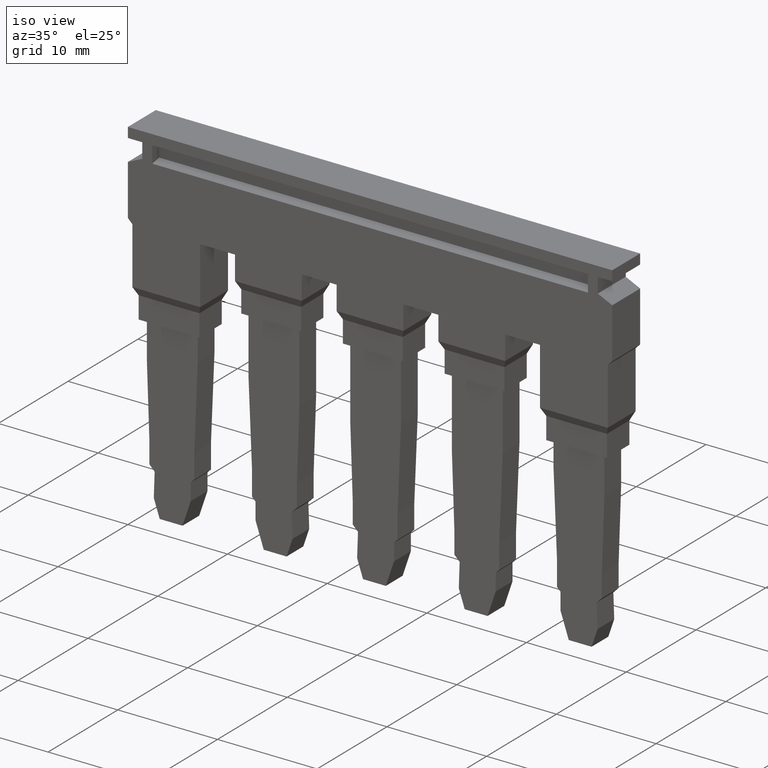
[diagram: clean part render]
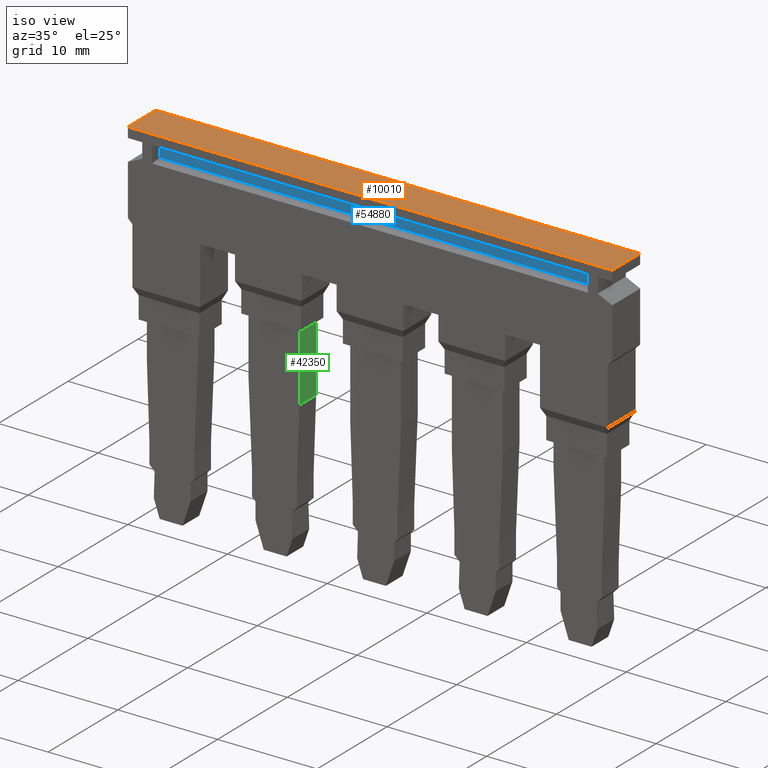
[diagram: same view with three faces highlighted in distinct colors, each labeled with its STEP entity id]
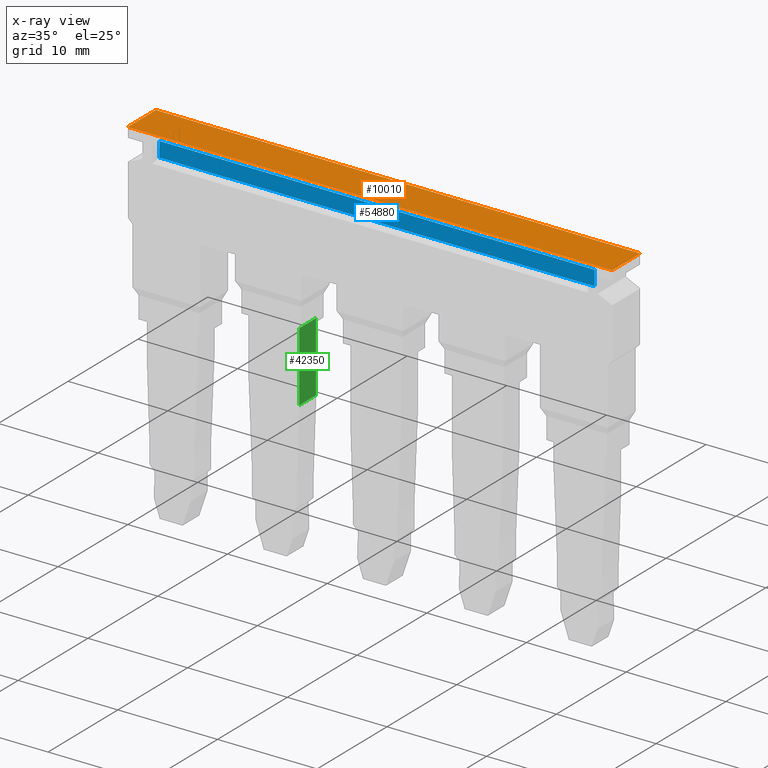
[diagram: x-ray of the same camera — body ghosted, the three highlighted faces saturated]
A machine part, iso view with three faces highlighted in distinct colors.
The next image is the same camera in x-ray (body ghosted, the three faces saturated) — at least one of them is partly hidden behind the body in this view.
Their STEP definitions:

[orange] entity #10010 — the highlighted planar face has unit normal (-0, 0, -1).
#100=CARTESIAN_POINT('',(-2.40000000012796,39.9999997693944,-39.525));
#110=VERTEX_POINT('',#100);
#2400=CARTESIAN_POINT('',(-2.40000000012796,39.9999997693944,9.075));
#2410=VERTEX_POINT('',#2400);
#2440=CARTESIAN_POINT('',(-2.40000000012796,39.9999997693944,
4.40737639386843));
#2450=DIRECTION('',(0.,-6.12323399583388E-17,1.));
#2460=VECTOR('',#2450,1.);
#2470=LINE('',#2440,#2460);
#2480=EDGE_CURVE('',#110,#2410,#2470,.T.);
#3050=CARTESIAN_POINT('',(-6.40000000004967,39.9999997693944,9.075));
#3060=VERTEX_POINT('',#3050);
#5330=CARTESIAN_POINT('',(-6.40000000004966,39.9999997693944,-39.525));
#5340=VERTEX_POINT('',#5330);
#5370=CARTESIAN_POINT('',(-6.40000000004967,39.9999997693944,-15.225));
#5380=DIRECTION('',(-1.11022302461495E-16,-6.12323399583388E-17,1.));
#5390=VECTOR('',#5380,1.);
#5400=LINE('',#5370,#5390);
#5410=EDGE_CURVE('',#5340,#3060,#5400,.T.);
#6000=CARTESIAN_POINT('',(-2.40000000012796,39.9999997693944,9.075));
#6010=DIRECTION('',(1.,0.,0.));
#6020=VECTOR('',#6010,1.);
#6030=LINE('',#6000,#6020);
#6040=EDGE_CURVE('',#3060,#2410,#6030,.T.);
#9850=CARTESIAN_POINT('',(-2.40000000012796,39.9999997693944,-38.425));
#9860=DIRECTION('',(-0.,-1.,-6.12323399583388E-17));
#9870=DIRECTION('',(0.,-6.12323399583388E-17,1.));
#9880=AXIS2_PLACEMENT_3D('',#9850,#9860,#9870);
#9890=PLANE('',#9880);
#9900=ORIENTED_EDGE('',*,*,#2480,.F.);
#9910=ORIENTED_EDGE('',*,*,#6040,.T.);
#9920=ORIENTED_EDGE('',*,*,#5410,.T.);
#9930=CARTESIAN_POINT('',(-2.40000000012796,39.9999997693944,-39.525));
#9940=DIRECTION('',(1.,0.,0.));
#9950=VECTOR('',#9940,1.);
#9960=LINE('',#9930,#9950);
#9970=EDGE_CURVE('',#5340,#110,#9960,.T.);
#9980=ORIENTED_EDGE('',*,*,#9970,.F.);
#9990=EDGE_LOOP('',(#9980,#9920,#9910,#9900));
#10000=FACE_OUTER_BOUND('',#9990,.T.);
#10010=ADVANCED_FACE('',(#10000),#9890,.F.);

[blue] entity #54880 — the highlighted planar face has unit normal (0, 1, 0).
#54050=CARTESIAN_POINT('',(-5.39999999998135,38.9999997703967,
-37.0750000000175));
#54060=VERTEX_POINT('',#54050);
#54090=CARTESIAN_POINT('',(-5.40000000023386,24.5659443935962,
-37.0750000000175));
#54100=DIRECTION('',(1.74939901767895E-11,1.,2.251741776584E-18));
#54110=VECTOR('',#54100,1.);
#54120=LINE('',#54090,#54110);
#54130=CARTESIAN_POINT('',(-5.40000000000759,37.4999997703967,
-37.0750000000175));
#54140=VERTEX_POINT('',#54130);
#54150=EDGE_CURVE('',#54140,#54060,#54120,.T.);
#54400=CARTESIAN_POINT('',(-5.39999999989475,37.4999997703967,
-30.6250000000175));
#54410=DIRECTION('',(1.74939381350852E-11,-2.2520478153659E-18,1.));
#54420=VECTOR('',#54410,1.);
#54430=LINE('',#54400,#54420);
#54440=CARTESIAN_POINT('',(-5.3999999992431,37.4999997703967,
6.62499999998251));
#54450=VERTEX_POINT('',#54440);
#54460=EDGE_CURVE('',#54140,#54450,#54430,.T.);
#54650=CARTESIAN_POINT('',(-5.39999999998135,38.9999997703967,
-37.0750000000175));
#54660=DIRECTION('',(1.,-1.74939901767895E-11,-1.74939381350852E-11));
#54670=DIRECTION('',(-1.74939901767895E-11,-1.,-2.251741776584E-18));
#54680=AXIS2_PLACEMENT_3D('',#54650,#54660,#54670);
#54690=PLANE('',#54680);
#54700=ORIENTED_EDGE('',*,*,#54150,.F.);
#54710=CARTESIAN_POINT('',(-5.39999999986851,38.9999997703967,
-30.6250000000175));
#54720=DIRECTION('',(1.74939381350852E-11,-2.25204781536588E-18,1.));
#54730=VECTOR('',#54720,1.);
#54740=LINE('',#54710,#54730);
#54750=CARTESIAN_POINT('',(-5.39999999921686,38.9999997703967,
6.62499999998251));
#54760=VERTEX_POINT('',#54750);
#54770=EDGE_CURVE('',#54060,#54760,#54740,.T.);
#54780=ORIENTED_EDGE('',*,*,#54770,.F.);
#54790=CARTESIAN_POINT('',(-5.4000000000968,-11.2994742296033,
6.62499999998252));
#54800=DIRECTION('',(1.74939901767895E-11,1.,-2.42677618055314E-16));
#54810=VECTOR('',#54800,1.);
#54820=LINE('',#54790,#54810);
#54830=EDGE_CURVE('',#54450,#54760,#54820,.T.);
#54840=ORIENTED_EDGE('',*,*,#54830,.T.);
#54850=ORIENTED_EDGE('',*,*,#54460,.T.);
#54860=EDGE_LOOP('',(#54850,#54840,#54780,#54700));
#54870=FACE_OUTER_BOUND('',#54860,.T.);
#54880=ADVANCED_FACE('',(#54870),#54690,.F.);

[green] entity #42350 — the highlighted planar face has unit normal (-1, 0, -0).
#8900=CARTESIAN_POINT('',(-3.20000000012802,25.8999997693718,
-22.8750000016327));
#8910=VERTEX_POINT('',#8900);
#8940=CARTESIAN_POINT('',(-2.40000000012796,25.8999997693718,
-22.8750000016326));
#8950=DIRECTION('',(-1.,-3.69778549322349E-32,1.77975831143421E-16));
#8960=VECTOR('',#8950,1.);
#8970=LINE('',#8940,#8960);
#8980=CARTESIAN_POINT('',(-5.60000000012802,25.8999997693718,
-22.8750000016327));
#8990=VERTEX_POINT('',#8980);
#9000=EDGE_CURVE('',#8910,#8990,#8970,.T.);
#38640=CARTESIAN_POINT('',(-3.20000000009745,18.9090873678956,
-22.8750000016327));
#38650=VERTEX_POINT('',#38640);
#38680=CARTESIAN_POINT('',(-3.20000000012218,24.5659443926042,
-22.8750000016327));
#38690=DIRECTION('',(4.37230317964272E-12,-1.,4.55531587300953E-16));
#38700=VECTOR('',#38690,1.);
#38710=LINE('',#38680,#38700);
#38720=EDGE_CURVE('',#8910,#38650,#38710,.T.);
#39590=CARTESIAN_POINT('',(-5.60000000012218,24.5659443925937,
-22.8750000016327));
#39600=DIRECTION('',(4.37230317964272E-12,-1.,4.55531587300953E-16));
#39610=VECTOR('',#39600,1.);
#39620=LINE('',#39590,#39610);
#39630=CARTESIAN_POINT('',(-5.60000000009745,18.9090873678851,
-22.8750000016327));
#39640=VERTEX_POINT('',#39630);
#39650=EDGE_CURVE('',#8990,#39640,#39620,.T.);
#42190=CARTESIAN_POINT('',(-5.60000000013115,26.6155919999755,
-22.8750000016326));
#42200=DIRECTION('',(-1.77975831143421E-16,-4.55531587301731E-16,-1.));
#42210=DIRECTION('',(-4.37230317964272E-12,1.,-4.55531587300953E-16));
#42220=AXIS2_PLACEMENT_3D('',#42190,#42200,#42210);
#42230=PLANE('',#42220);
#42240=ORIENTED_EDGE('',*,*,#39650,.T.);
#42250=ORIENTED_EDGE('',*,*,#9000,.T.);
#42260=ORIENTED_EDGE('',*,*,#38720,.F.);
#42270=CARTESIAN_POINT('',(-5.60000000009745,18.9090873678851,
-22.8750000016327));
#42280=DIRECTION('',(1.,4.37230317964272E-12,-1.77975831145412E-16));
#42290=VECTOR('',#42280,1.);
#42300=LINE('',#42270,#42290);
#42310=EDGE_CURVE('',#39640,#38650,#42300,.T.);
#42320=ORIENTED_EDGE('',*,*,#42310,.T.);
#42330=EDGE_LOOP('',(#42320,#42260,#42250,#42240));
#42340=FACE_OUTER_BOUND('',#42330,.T.);
#42350=ADVANCED_FACE('',(#42340),#42230,.F.);